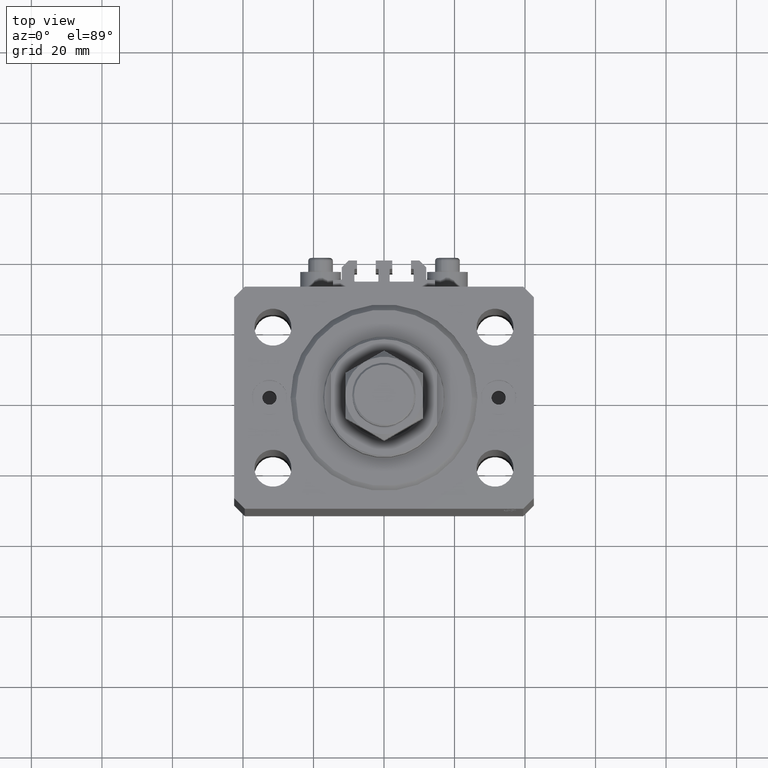
[diagram: clean part render]
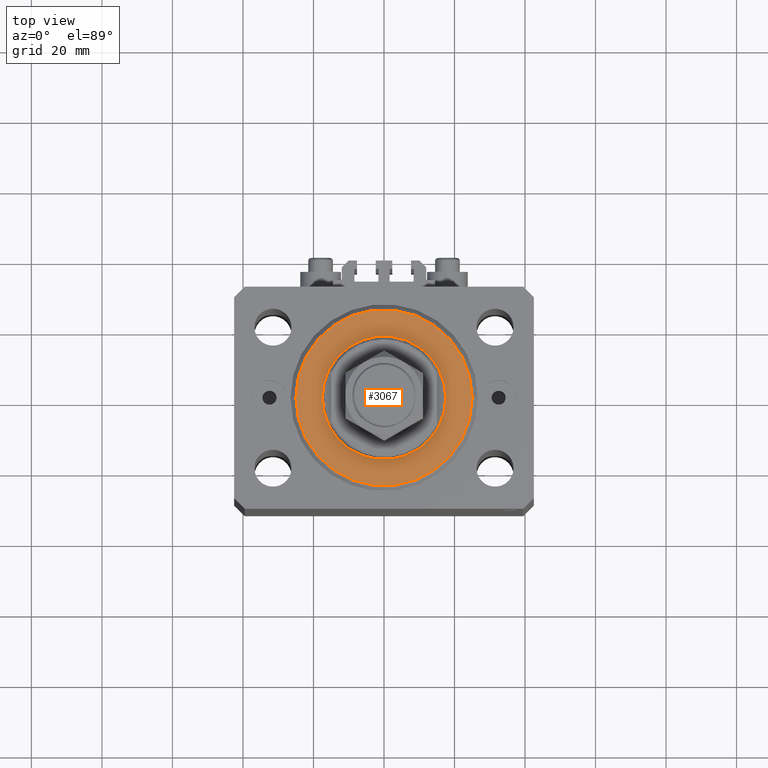
[diagram: same view with one face highlighted and labeled with its STEP entity id]
A machine part, top view. The second image highlights one B-rep face of the part: STEP entity #3067.
In plain terms, the highlighted planar face has unit normal (0, 0, -1).
Its self-contained STEP definition (entity closure, byte-faithful):
#1418 = DIRECTION ( 'NONE',  ( 1.000000000000000000, 0.000000000000000000, 0.000000000000000000 ) ) ;
#2034 = DIRECTION ( 'NONE',  ( 1.000000000000000000, 0.000000000000000000, 0.000000000000000000 ) ) ;
#2823 = DIRECTION ( 'NONE',  ( 0.000000000000000000, 0.000000000000000000, 1.000000000000000000 ) ) ;
#3067 = ADVANCED_FACE ( 'NONE', ( #30030, #26057 ), #26301, .F. ) ;
#3342 = CARTESIAN_POINT ( 'NONE',  ( 0.000000000000000000, 0.000000000000000000, 0.000000000000000000 ) ) ;
#4890 = EDGE_LOOP ( 'NONE', ( #40730, #42721 ) ) ;
#6137 = VERTEX_POINT ( 'NONE', #26503 ) ;
#6834 = AXIS2_PLACEMENT_3D ( 'NONE', #7512, #2823, #17891 ) ;
#6966 = ORIENTED_EDGE ( 'NONE', *, *, #17834, .T. ) ;
#7512 = CARTESIAN_POINT ( 'NONE',  ( 0.000000000000000000, 0.000000000000000000, 0.000000000000000000 ) ) ;
#10959 = DIRECTION ( 'NONE',  ( 1.000000000000000000, 0.000000000000000000, 0.000000000000000000 ) ) ;
#12191 = CARTESIAN_POINT ( 'NONE',  ( 17.50000000000000000, 0.000000000000000000, 2.168404344971008868E-16 ) ) ;
#12930 = AXIS2_PLACEMENT_3D ( 'NONE', #27627, #47114, #1418 ) ;
#13160 = CIRCLE ( 'NONE', #40785, 24.99999999999998224 ) ;
#14908 = DIRECTION ( 'NONE',  ( 0.000000000000000000, 0.000000000000000000, 1.000000000000000000 ) ) ;
#17834 = EDGE_CURVE ( 'NONE', #38344, #21757, #41126, .T. ) ;
#17891 = DIRECTION ( 'NONE',  ( 1.000000000000000000, 0.000000000000000000, -0.000000000000000000 ) ) ;
#21757 = VERTEX_POINT ( 'NONE', #12191 ) ;
#23677 = EDGE_CURVE ( 'NONE', #21757, #38344, #47634, .T. ) ;
#24532 = CARTESIAN_POINT ( 'NONE',  ( 0.000000000000000000, 0.000000000000000000, 0.000000000000000000 ) ) ;
#26057 = FACE_OUTER_BOUND ( 'NONE', #4890, .T. ) ;
#26301 = PLANE ( 'NONE',  #6834 ) ;
#26326 = CIRCLE ( 'NONE', #12930, 24.99999999999998224 ) ;
#26503 = CARTESIAN_POINT ( 'NONE',  ( -24.99999999999998224, 3.153465507804433615E-15, 0.000000000000000000 ) ) ;
#27627 = CARTESIAN_POINT ( 'NONE',  ( 0.000000000000000000, 0.000000000000000000, 0.000000000000000000 ) ) ;
#27714 = EDGE_CURVE ( 'NONE', #29282, #6137, #26326, .T. ) ;
#28502 = AXIS2_PLACEMENT_3D ( 'NONE', #3342, #40918, #45351 ) ;
#29282 = VERTEX_POINT ( 'NONE', #42103 ) ;
#30030 = FACE_BOUND ( 'NONE', #34952, .T. ) ;
#33965 = CARTESIAN_POINT ( 'NONE',  ( 0.000000000000000000, 0.000000000000000000, 0.000000000000000000 ) ) ;
#34251 = AXIS2_PLACEMENT_3D ( 'NONE', #33965, #14908, #10959 ) ;
#34952 = EDGE_LOOP ( 'NONE', ( #37417, #6966 ) ) ;
#35920 = DIRECTION ( 'NONE',  ( -0.000000000000000000, -0.000000000000000000, -1.000000000000000000 ) ) ;
#35986 = EDGE_CURVE ( 'NONE', #6137, #29282, #13160, .T. ) ;
#36990 = CARTESIAN_POINT ( 'NONE',  ( -17.50000000000000000, 2.143131898507868643E-15, 2.168404344971008868E-16 ) ) ;
#37417 = ORIENTED_EDGE ( 'NONE', *, *, #23677, .T. ) ;
#38344 = VERTEX_POINT ( 'NONE', #36990 ) ;
#40730 = ORIENTED_EDGE ( 'NONE', *, *, #27714, .T. ) ;
#40785 = AXIS2_PLACEMENT_3D ( 'NONE', #24532, #35920, #2034 ) ;
#40918 = DIRECTION ( 'NONE',  ( 0.000000000000000000, 0.000000000000000000, 1.000000000000000000 ) ) ;
#41126 = CIRCLE ( 'NONE', #28502, 17.50000000000000000 ) ;
#42103 = CARTESIAN_POINT ( 'NONE',  ( 24.99999999999998224, 0.000000000000000000, 0.000000000000000000 ) ) ;
#42721 = ORIENTED_EDGE ( 'NONE', *, *, #35986, .T. ) ;
#45351 = DIRECTION ( 'NONE',  ( 1.000000000000000000, 0.000000000000000000, 0.000000000000000000 ) ) ;
#47114 = DIRECTION ( 'NONE',  ( -0.000000000000000000, -0.000000000000000000, -1.000000000000000000 ) ) ;
#47634 = CIRCLE ( 'NONE', #34251, 17.50000000000000000 ) ;